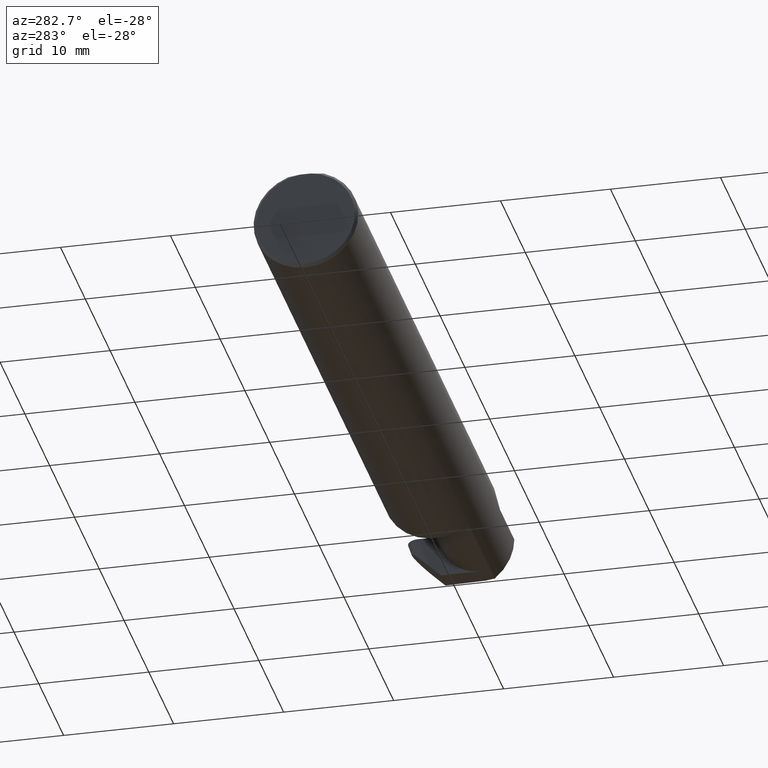
[diagram: clean part render]
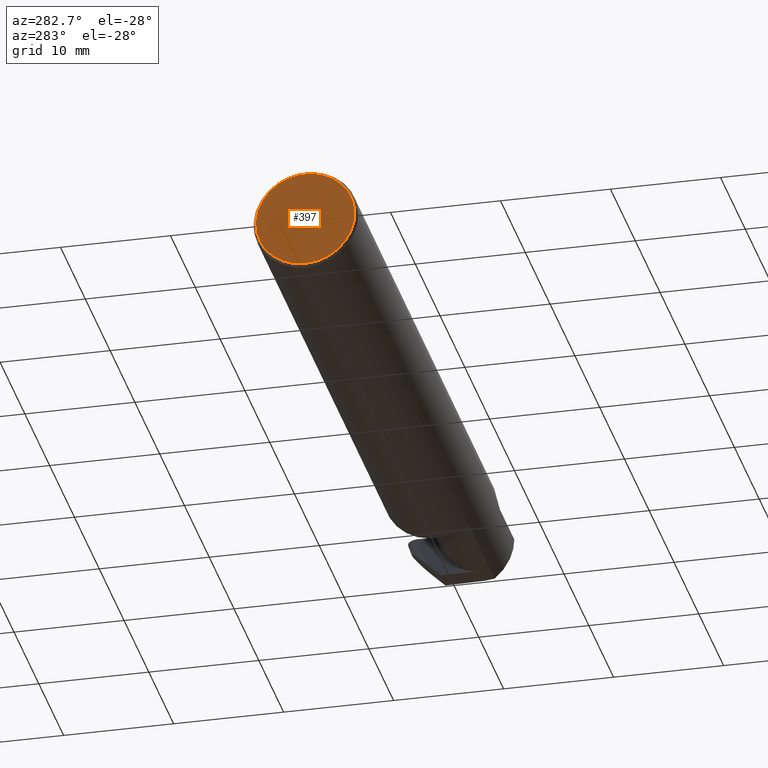
[diagram: same view with one face highlighted and labeled with its STEP entity id]
A machine part, auxiliary view. The second image highlights one B-rep face of the part: STEP entity #397.
In plain terms, the highlighted planar face has unit normal (1, 0, 0).
Its self-contained STEP definition (entity closure, byte-faithful):
#67 = CARTESIAN_POINT ( 'NONE',  ( 0.000000000000000000, 0.01880691362239451242, 0.1763499999999999235 ) ) ;
#88 = VERTEX_POINT ( 'NONE', #67 ) ;
#89 = CARTESIAN_POINT ( 'NONE',  ( 0.000000000000000000, 0.000000000000000000, -0.1773500000000005072 ) ) ;
#138 = LINE ( 'NONE', #200, #686 ) ;
#148 = FACE_OUTER_BOUND ( 'NONE', #300, .T. ) ;
#177 = DIRECTION ( 'NONE',  ( -1.000000000000000000, -0.000000000000000000, -0.000000000000000000 ) ) ;
#181 = ORIENTED_EDGE ( 'NONE', *, *, #238, .T. ) ;
#182 = DIRECTION ( 'NONE',  ( -1.000000000000000000, -0.000000000000000000, -0.000000000000000000 ) ) ;
#188 = CARTESIAN_POINT ( 'NONE',  ( 0.000000000000000000, 0.000000000000000000, 0.000000000000000000 ) ) ;
#200 = CARTESIAN_POINT ( 'NONE',  ( 0.000000000000000000, 0.1873499999999998500, 0.1763499999999999235 ) ) ;
#225 = DIRECTION ( 'NONE',  ( 0.000000000000000000, 0.000000000000000000, -1.000000000000000000 ) ) ;
#227 = CARTESIAN_POINT ( 'NONE',  ( 0.000000000000000000, 0.000000000000000000, 0.000000000000000000 ) ) ;
#238 = EDGE_CURVE ( 'NONE', #88, #575, #608, .T. ) ;
#260 = CARTESIAN_POINT ( 'NONE',  ( 0.000000000000000000, 0.000000000000000000, 0.000000000000000000 ) ) ;
#300 = EDGE_LOOP ( 'NONE', ( #453, #181, #362 ) ) ;
#362 = ORIENTED_EDGE ( 'NONE', *, *, #529, .T. ) ;
#381 = AXIS2_PLACEMENT_3D ( 'NONE', #227, #177, #225 ) ;
#397 = ADVANCED_FACE ( 'NONE', ( #148 ), #413, .F. ) ;
#413 = PLANE ( 'NONE',  #421 ) ;
#421 = AXIS2_PLACEMENT_3D ( 'NONE', #260, #481, #652 ) ;
#453 = ORIENTED_EDGE ( 'NONE', *, *, #609, .T. ) ;
#460 = CARTESIAN_POINT ( 'NONE',  ( 0.000000000000000000, -0.01880691362239451242, 0.1763499999999999235 ) ) ;
#481 = DIRECTION ( 'NONE',  ( 1.000000000000000000, 0.000000000000000000, 0.000000000000000000 ) ) ;
#506 = DIRECTION ( 'NONE',  ( 0.000000000000000000, 0.000000000000000000, -1.000000000000000000 ) ) ;
#529 = EDGE_CURVE ( 'NONE', #575, #702, #698, .T. ) ;
#568 = AXIS2_PLACEMENT_3D ( 'NONE', #188, #182, #506 ) ;
#575 = VERTEX_POINT ( 'NONE', #89 ) ;
#608 = CIRCLE ( 'NONE', #568, 0.1773500000000005072 ) ;
#609 = EDGE_CURVE ( 'NONE', #702, #88, #138, .T. ) ;
#652 = DIRECTION ( 'NONE',  ( 0.000000000000000000, 0.000000000000000000, -1.000000000000000000 ) ) ;
#686 = VECTOR ( 'NONE', #689, 39.37007874015748143 ) ;
#689 = DIRECTION ( 'NONE',  ( -0.000000000000000000, 1.000000000000000000, -0.000000000000000000 ) ) ;
#698 = CIRCLE ( 'NONE', #381, 0.1773500000000005072 ) ;
#702 = VERTEX_POINT ( 'NONE', #460 ) ;